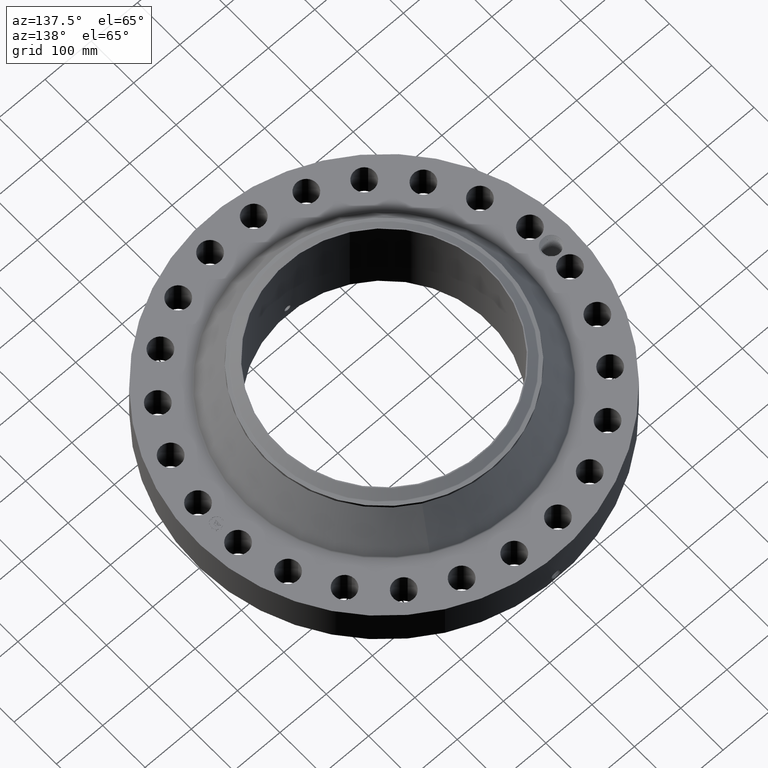
[diagram: clean part render]
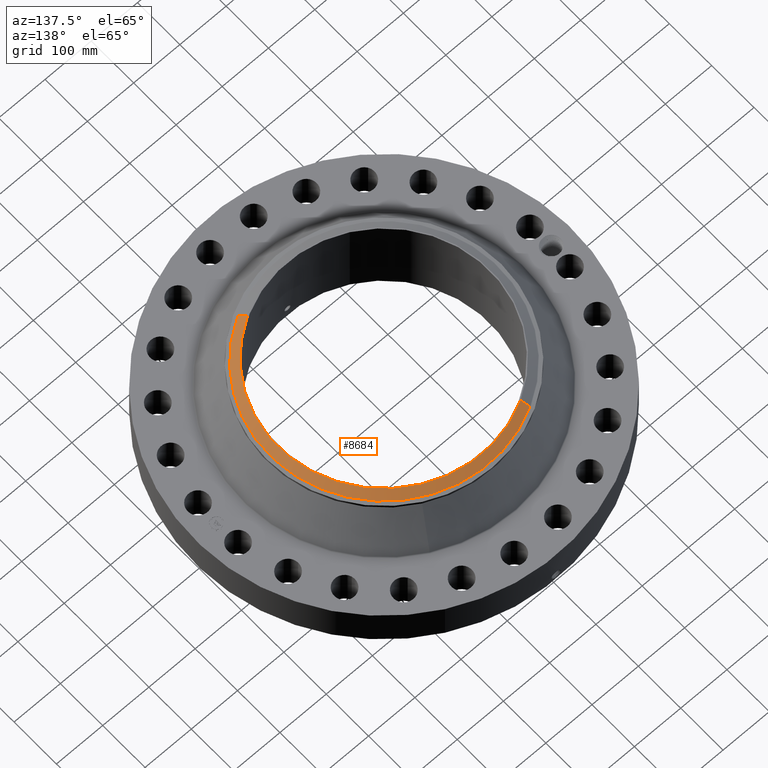
[diagram: same view with one face highlighted and labeled with its STEP entity id]
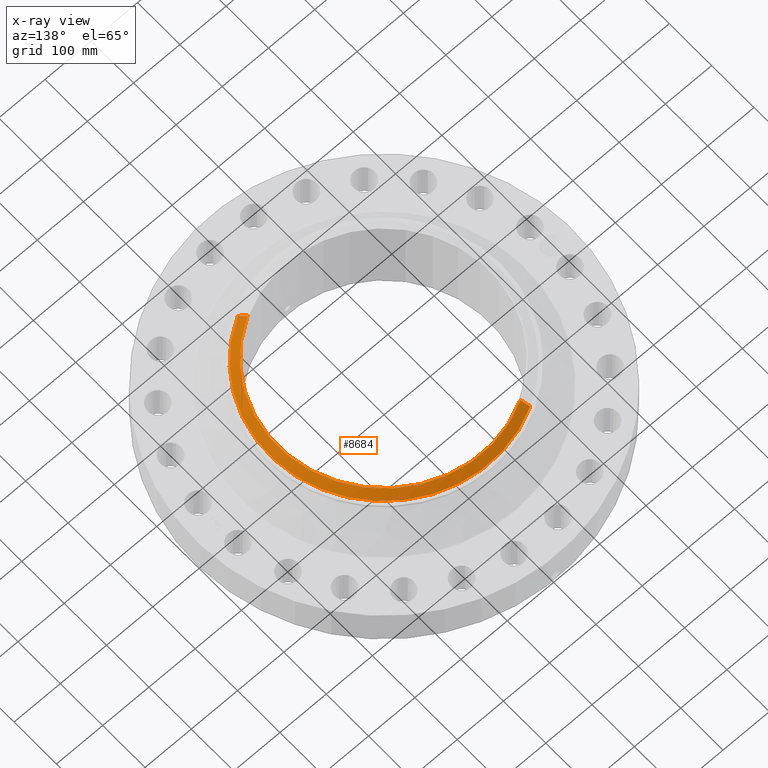
[diagram: x-ray of the same camera — body ghosted, the highlighted face saturated]
A machine part, auxiliary view. The second image highlights one B-rep face of the part: STEP entity #8684.
The next image is the same camera in x-ray: the body ghosted, the highlighted face saturated — about 0% of this face is hidden behind the body in this view.
In plain terms, the highlighted conical surface has half-angle 52.5 deg.
Its self-contained STEP definition (entity closure, byte-faithful):
#5085=AXIS2_PLACEMENT_3D('Circle Axis2P3D',#5083,#5084,$) ;
#8645=AXIS2_PLACEMENT_3D('Cone Axis2P3D',#8642,#8643,#8644) ;
#8675=AXIS2_PLACEMENT_3D('Circle Axis2P3D',#8673,#8674,$) ;
#5083=CARTESIAN_POINT('Axis2P3D Location',(0.,0.,7.75000000003)) ;
#5087=CARTESIAN_POINT('Vertex',(4.33771769817,-7.94013898675,7.75000000003)) ;
#5089=CARTESIAN_POINT('Vertex',(-4.33771769817,7.94013898675,7.75000000003)) ;
#8642=CARTESIAN_POINT('Axis2P3D Location',(0.,0.,7.75000000003)) ;
#8647=CARTESIAN_POINT('Line Origine',(-4.49265900072,8.22375713866,7.5020143726)) ;
#8651=CARTESIAN_POINT('Vertex',(-4.64760030327,8.50737529056,7.25402874516)) ;
#8658=CARTESIAN_POINT('Vertex',(4.64760030327,-8.50737529056,7.25402874516)) ;
#8661=CARTESIAN_POINT('Line Origine',(4.49265900072,-8.22375713866,7.5020143726)) ;
#8673=CARTESIAN_POINT('Axis2P3D Location',(0.,0.,7.25402874516)) ;
#5084=DIRECTION('Axis2P3D Direction',(0.,0.,-0.0393700787402)) ;
#8643=DIRECTION('Axis2P3D Direction',(-0.,-0.,-0.0393700787402)) ;
#8644=DIRECTION('Axis2P3D XDirection',(-0.0188750212049,0.0345504945626,0.)) ;
#8648=DIRECTION('Vector Direction',(-0.014974561121,0.02741075027,-0.023966985394)) ;
#8662=DIRECTION('Vector Direction',(0.014974561121,-0.02741075027,-0.023966985394)) ;
#8674=DIRECTION('Axis2P3D Direction',(0.,0.,-0.0393700787402)) ;
#8649=VECTOR('Line Direction',#8648,0.0393700787402) ;
#8663=VECTOR('Line Direction',#8662,0.0393700787402) ;
#8679=ORIENTED_EDGE('',*,*,#5091,.F.) ;
#8680=ORIENTED_EDGE('',*,*,#8665,.T.) ;
#8681=ORIENTED_EDGE('',*,*,#8677,.T.) ;
#8682=ORIENTED_EDGE('',*,*,#8653,.F.) ;
#8684=ADVANCED_FACE('PartBody',(#8683),#8646,.T.) ;
#5086=CIRCLE('generated circle',#5085,9.04774015752) ;
#8676=CIRCLE('generated circle',#8675,9.69410248106) ;
#8646=CONICAL_SURFACE('Cone',#8645,9.04774015752,0.916297857297) ;
#5091=EDGE_CURVE('',#5088,#5090,#5086,.F.) ;
#8653=EDGE_CURVE('',#5090,#8652,#8650,.T.) ;
#8665=EDGE_CURVE('',#5088,#8659,#8664,.T.) ;
#8677=EDGE_CURVE('',#8659,#8652,#8676,.F.) ;
#8678=EDGE_LOOP('',(#8679,#8680,#8681,#8682)) ;
#8683=FACE_OUTER_BOUND('',#8678,.T.) ;
#8650=LINE('Line',#8647,#8649) ;
#8664=LINE('Line',#8661,#8663) ;
#5088=VERTEX_POINT('',#5087) ;
#5090=VERTEX_POINT('',#5089) ;
#8652=VERTEX_POINT('',#8651) ;
#8659=VERTEX_POINT('',#8658) ;